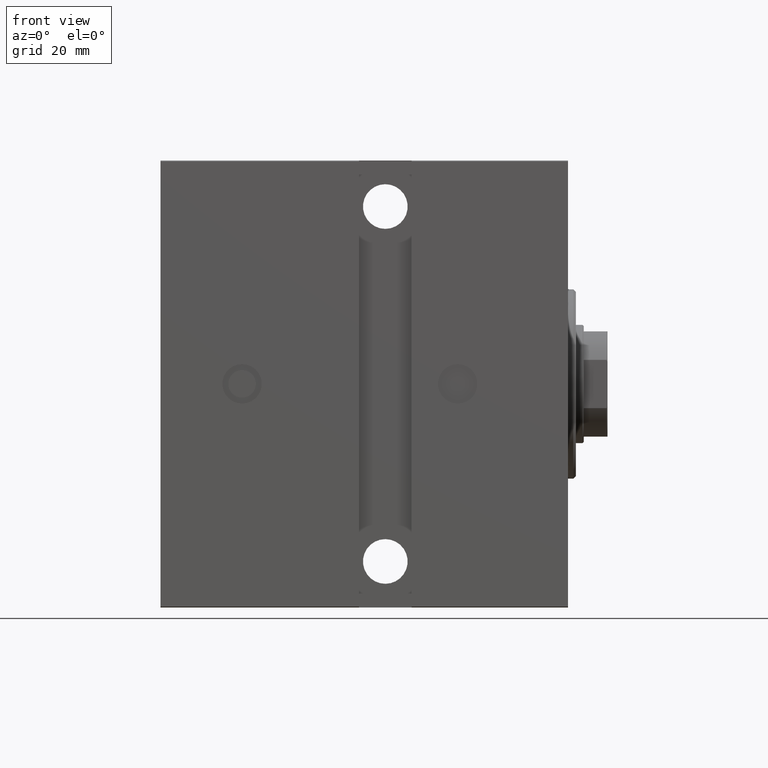
[diagram: clean part render]
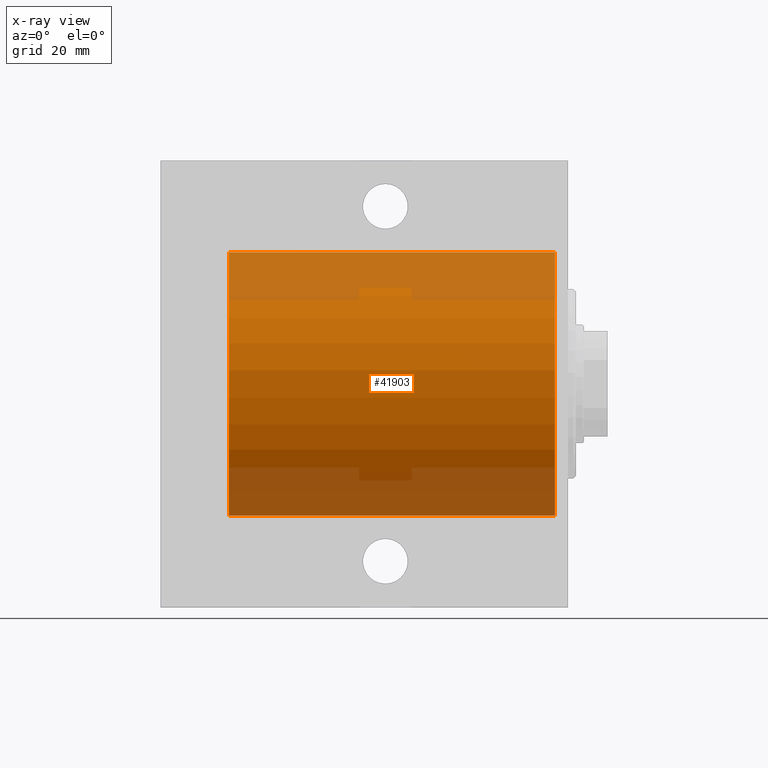
[diagram: x-ray — body ghosted, one internal face saturated and labeled with its STEP entity id]
A machine part, front view, then the same camera in x-ray: the body is ghosted and one INTERNAL B-rep face — a face not visible from any outside direction — is saturated and labeled: STEP entity #41903.
In plain terms, the highlighted cylindrical surface (partial cylindrical patch) has radius 50 mm, axis along (1, 0, -0).
Its self-contained STEP definition (entity closure, byte-faithful):
#1154 = CARTESIAN_POINT ( 'NONE',  ( 129.0000000000000000, 6.123233995736766085E-15, -50.00000000000000000 ) ) ;
#1380 = VERTEX_POINT ( 'NONE', #37998 ) ;
#2410 = AXIS2_PLACEMENT_3D ( 'NONE', #4521, #37034, #15077 ) ;
#2606 = VERTEX_POINT ( 'NONE', #42010 ) ;
#4304 = FACE_OUTER_BOUND ( 'NONE', #13102, .T. ) ;
#4371 = LINE ( 'NONE', #1154, #39354 ) ;
#4521 = CARTESIAN_POINT ( 'NONE',  ( 129.0000000000000000, 0.000000000000000000, 0.000000000000000000 ) ) ;
#4572 = ORIENTED_EDGE ( 'NONE', *, *, #32532, .T. ) ;
#5613 = CARTESIAN_POINT ( 'NONE',  ( 129.0000000000000000, 0.000000000000000000, 0.000000000000000000 ) ) ;
#6312 = VERTEX_POINT ( 'NONE', #40879 ) ;
#6343 = ORIENTED_EDGE ( 'NONE', *, *, #28280, .T. ) ;
#9644 = CARTESIAN_POINT ( 'NONE',  ( 129.0000000000000000, 0.000000000000000000, 50.00000000000000000 ) ) ;
#9858 = LINE ( 'NONE', #9644, #42065 ) ;
#12728 = DIRECTION ( 'NONE',  ( 0.000000000000000000, 0.000000000000000000, 1.000000000000000000 ) ) ;
#13102 = EDGE_LOOP ( 'NONE', ( #26642, #13371, #4572, #6343 ) ) ;
#13371 = ORIENTED_EDGE ( 'NONE', *, *, #16992, .F. ) ;
#14292 = DIRECTION ( 'NONE',  ( -1.000000000000000000, -0.000000000000000000, -0.000000000000000000 ) ) ;
#15077 = DIRECTION ( 'NONE',  ( 0.000000000000000000, 0.000000000000000000, 1.000000000000000000 ) ) ;
#16992 = EDGE_CURVE ( 'NONE', #1380, #24457, #36077, .T. ) ;
#18627 = DIRECTION ( 'NONE',  ( 0.000000000000000000, 0.000000000000000000, 1.000000000000000000 ) ) ;
#22055 = DIRECTION ( 'NONE',  ( -1.000000000000000000, 0.000000000000000000, 0.000000000000000000 ) ) ;
#22131 = CIRCLE ( 'NONE', #37928, 50.00000000000000000 ) ;
#23323 = CARTESIAN_POINT ( 'NONE',  ( 129.0000000000000000, 6.123233995736766085E-15, -50.00000000000000000 ) ) ;
#24457 = VERTEX_POINT ( 'NONE', #23323 ) ;
#24724 = CYLINDRICAL_SURFACE ( 'NONE', #2410, 50.00000000000000000 ) ;
#26642 = ORIENTED_EDGE ( 'NONE', *, *, #29538, .F. ) ;
#28280 = EDGE_CURVE ( 'NONE', #6312, #2606, #22131, .T. ) ;
#29178 = AXIS2_PLACEMENT_3D ( 'NONE', #5613, #38353, #12728 ) ;
#29538 = EDGE_CURVE ( 'NONE', #24457, #2606, #4371, .T. ) ;
#32532 = EDGE_CURVE ( 'NONE', #1380, #6312, #9858, .T. ) ;
#35424 = CARTESIAN_POINT ( 'NONE',  ( 5.000000000000004441, 0.000000000000000000, 0.000000000000000000 ) ) ;
#35885 = DIRECTION ( 'NONE',  ( -1.000000000000000000, -0.000000000000000000, -0.000000000000000000 ) ) ;
#36077 = CIRCLE ( 'NONE', #29178, 50.00000000000000000 ) ;
#37034 = DIRECTION ( 'NONE',  ( -1.000000000000000000, -0.000000000000000000, -0.000000000000000000 ) ) ;
#37928 = AXIS2_PLACEMENT_3D ( 'NONE', #35424, #22055, #18627 ) ;
#37998 = CARTESIAN_POINT ( 'NONE',  ( 129.0000000000000000, 0.000000000000000000, 50.00000000000000000 ) ) ;
#38353 = DIRECTION ( 'NONE',  ( -1.000000000000000000, 0.000000000000000000, 0.000000000000000000 ) ) ;
#39354 = VECTOR ( 'NONE', #14292, 1000.000000000000000 ) ;
#40879 = CARTESIAN_POINT ( 'NONE',  ( 5.000000000000004441, 0.000000000000000000, 50.00000000000000000 ) ) ;
#41903 = ADVANCED_FACE ( 'NONE', ( #4304 ), #24724, .F. ) ;
#42010 = CARTESIAN_POINT ( 'NONE',  ( 5.000000000000004441, 6.123233995736766085E-15, -50.00000000000000000 ) ) ;
#42065 = VECTOR ( 'NONE', #35885, 1000.000000000000000 ) ;